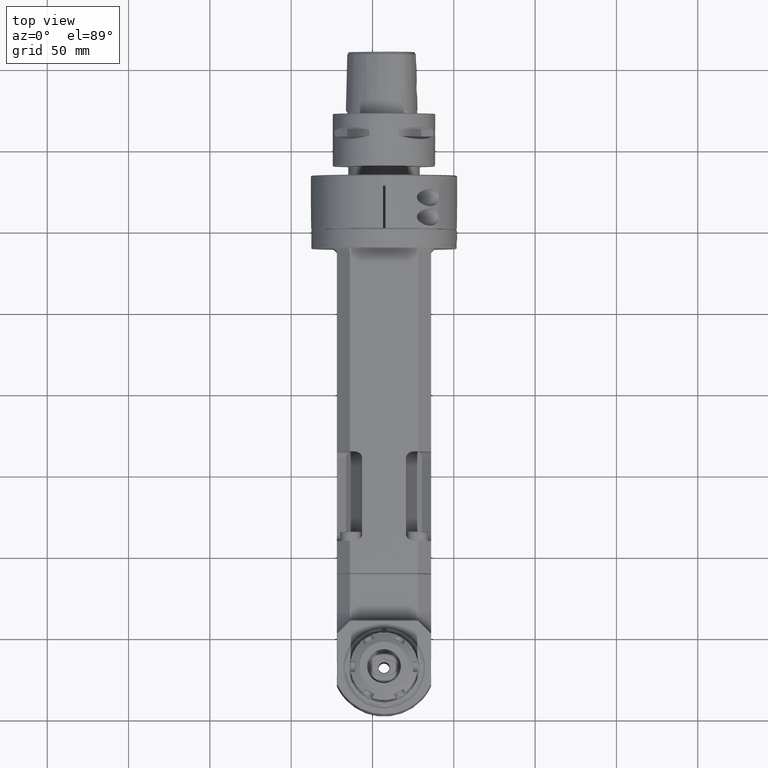
[diagram: clean part render]
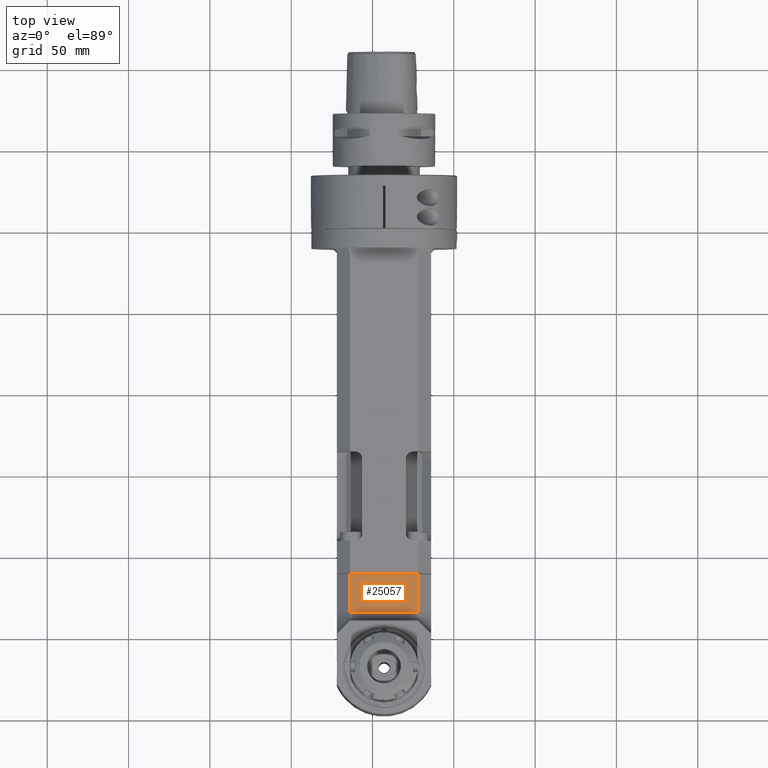
[diagram: same view with one face highlighted and labeled with its STEP entity id]
A machine part, top view. The second image highlights one B-rep face of the part: STEP entity #25057.
In plain terms, the highlighted planar face has unit normal (-0, -0, -1).
Its self-contained STEP definition (entity closure, byte-faithful):
#583=PLANE('',#26919);
#2337=FACE_OUTER_BOUND('',#3900,.T.);
#3900=EDGE_LOOP('',(#18321,#18322,#18323,#18324));
#6730=LINE('',#37267,#8768);
#6733=LINE('',#37273,#8771);
#6925=LINE('',#38990,#8963);
#6926=LINE('',#38992,#8964);
#8768=VECTOR('',#29558,42.);
#8771=VECTOR('',#29565,23.5);
#8963=VECTOR('',#30375,23.5);
#8964=VECTOR('',#30378,42.);
#10897=VERTEX_POINT('',#37262);
#10898=VERTEX_POINT('',#37266);
#10899=VERTEX_POINT('',#37272);
#11149=VERTEX_POINT('',#38988);
#13492=EDGE_CURVE('',#10897,#10898,#6730,.T.);
#13495=EDGE_CURVE('',#10898,#10899,#6733,.T.);
#13883=EDGE_CURVE('',#11149,#10897,#6925,.T.);
#13884=EDGE_CURVE('',#11149,#10899,#6926,.T.);
#18321=ORIENTED_EDGE('',*,*,#13492,.F.);
#18322=ORIENTED_EDGE('',*,*,#13883,.F.);
#18323=ORIENTED_EDGE('',*,*,#13884,.T.);
#18324=ORIENTED_EDGE('',*,*,#13495,.F.);
#25057=ADVANCED_FACE('',(#2337),#583,.F.);
#26919=AXIS2_PLACEMENT_3D('',#38991,#30376,#30377);
#29558=DIRECTION('',(1.,0.,0.));
#29565=DIRECTION('',(0.,-1.,0.));
#30375=DIRECTION('',(0.,1.,0.));
#30376=DIRECTION('center_axis',(0.,0.,-1.));
#30377=DIRECTION('ref_axis',(0.,1.,0.));
#30378=DIRECTION('',(1.,0.,0.));
#37262=CARTESIAN_POINT('',(-21.,-212.5,33.));
#37266=CARTESIAN_POINT('',(21.,-212.5,33.));
#37267=CARTESIAN_POINT('',(-21.,-212.5,33.));
#37272=CARTESIAN_POINT('',(21.,-236.,33.));
#37273=CARTESIAN_POINT('',(21.,-212.5,33.));
#38988=CARTESIAN_POINT('',(-21.,-236.,33.));
#38990=CARTESIAN_POINT('',(-21.,-236.,33.));
#38991=CARTESIAN_POINT('Origin',(-34.8,-236.,33.));
#38992=CARTESIAN_POINT('',(-21.,-236.,33.));